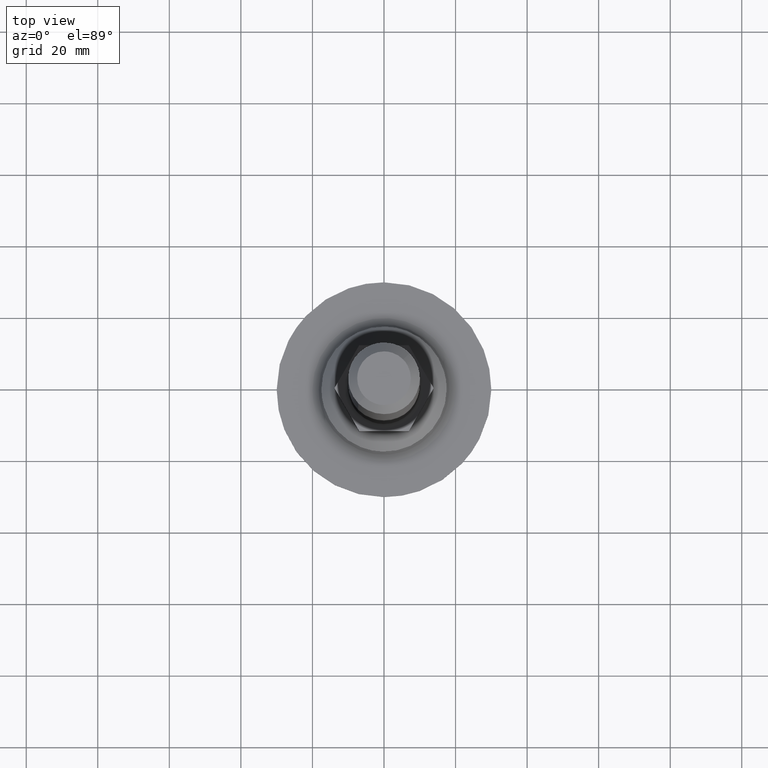
[diagram: clean part render]
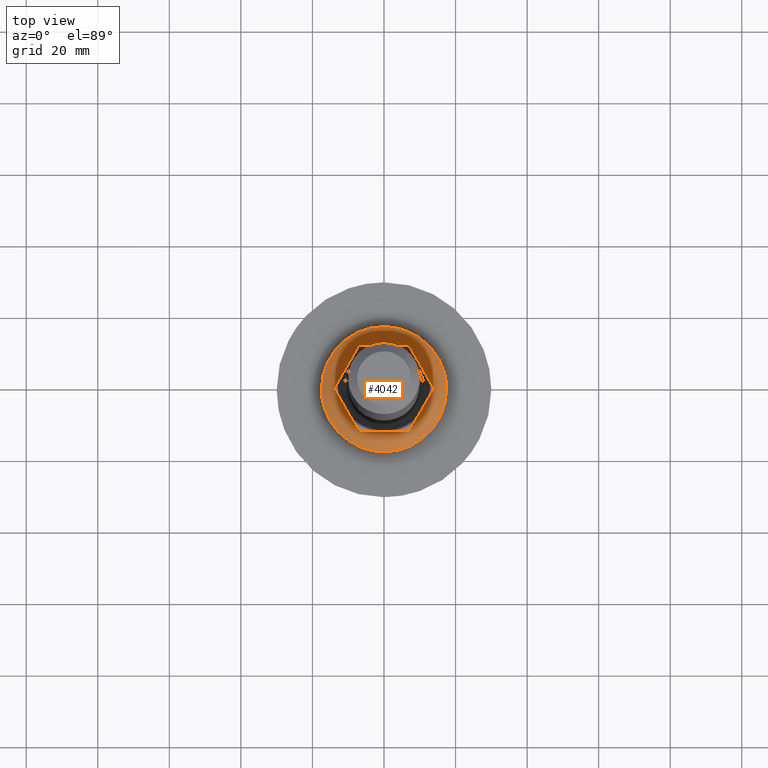
[diagram: same view with one face highlighted and labeled with its STEP entity id]
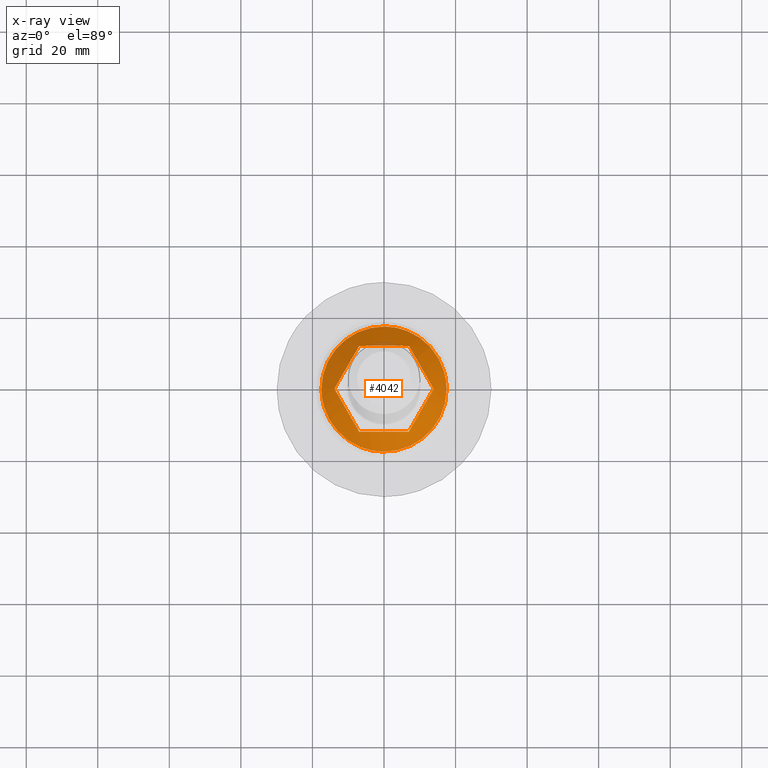
[diagram: x-ray of the same camera — body ghosted, the highlighted face saturated]
A machine part, top view. The second image highlights one B-rep face of the part: STEP entity #4042.
The next image is the same camera in x-ray: the body ghosted, the highlighted face saturated — about 1% of this face is hidden behind the body in this view.
In plain terms, the highlighted face is a freeform B-spline surface patch.
Its self-contained STEP definition (entity closure, byte-faithful):
#3642=CARTESIAN_POINT('',(6.442179672009505,16.271088503033521,10.499999999988480));
#3643=VERTEX_POINT('',#3642);
#3651=CARTESIAN_POINT('',(17.500000000000000,0.0,10.500000000000000));
#3652=VERTEX_POINT('',#3651);
#3653=CARTESIAN_POINT('',(6.442179672009505,16.271088503033521,10.499999999988480));
#3654=CARTESIAN_POINT('',(7.757566128484298,15.750708381420340,10.499999999989170));
#3655=CARTESIAN_POINT('',(9.731051910710002,14.676329716082670,10.499999999990330));
#3656=CARTESIAN_POINT('',(12.298104800389909,12.560114708280089,10.499999999992230));
#3657=CARTESIAN_POINT('',(14.383576656482139,10.173697140784810,10.499999999993930));
#3658=CARTESIAN_POINT('',(15.953895928574349,7.415750688522921,10.499999999995930));
#3659=CARTESIAN_POINT('',(17.173958403311879,3.971301255105628,10.499999999997980));
#3660=CARTESIAN_POINT('',(17.500504518683648,1.577819955629081,10.499999999999149));
#3661=CARTESIAN_POINT('',(17.500000000000000,0.0,10.500000000000000));
#3662=B_SPLINE_CURVE_WITH_KNOTS('',3,(#3653,#3654,#3655,#3656,#3657,#3658,#3659,#3660,#3661),.UNSPECIFIED.,.F.,.U.,(4,1,1,1,1,1,4),(0.000000086629896,4.243616405065399,6.691876775537116,9.956210998992564,13.710147552430200,16.158403780252950,20.891666863325302),.UNSPECIFIED.);
#3663=EDGE_CURVE('',#3643,#3652,#3662,.T.);
#3665=CARTESIAN_POINT('',(-6.442179672009507,-16.271088503033521,10.499999999988480));
#3666=VERTEX_POINT('',#3665);
#3667=CARTESIAN_POINT('',(17.500000000000000,0.0,10.500000000000000));
#3668=CARTESIAN_POINT('',(17.500094653143609,-1.020812217045716,10.499999999999810));
#3669=CARTESIAN_POINT('',(17.348087882014070,-2.751713039325113,10.499999999999270));
#3670=CARTESIAN_POINT('',(16.703859364383899,-5.432233924505061,10.499999999998570));
#3671=CARTESIAN_POINT('',(15.535124665052930,-8.323792483284477,10.499999999997479));
#3672=CARTESIAN_POINT('',(13.745616923930401,-10.998102868598551,10.499999999996239));
#3673=CARTESIAN_POINT('',(11.346060773356291,-13.442831316826020,10.499999999995110));
#3674=CARTESIAN_POINT('',(8.875326840143268,-15.205681626257670,10.499999999993770));
#3675=CARTESIAN_POINT('',(5.959763167166365,-16.541033129688671,10.499999999992591));
#3676=CARTESIAN_POINT('',(3.206600957488396,-17.279682903144749,10.499999999991360));
#3677=CARTESIAN_POINT('',(0.638416124254545,-17.543374711169889,10.499999999990550));
#3678=CARTESIAN_POINT('',(-2.605677279839930,-17.431249791171719,10.499999999989489));
#3679=CARTESIAN_POINT('',(-4.915494757814019,-16.876272315346871,10.499999999988690));
#3680=CARTESIAN_POINT('',(-6.442179672009507,-16.271088503033521,10.499999999988480));
#3681=B_SPLINE_CURVE_WITH_KNOTS('',3,(#3667,#3668,#3669,#3670,#3671,#3672,#3673,#3674,#3675,#3676,#3677,#3678,#3679,#3680),.UNSPECIFIED.,.F.,.U.,(4,1,1,1,1,1,1,1,1,1,1,4),(0.000000213082991,3.062425925654310,5.192825730115043,8.255290699709168,12.382977219230250,14.779637154846700,18.507753188290380,21.437110458232961,24.366409174082190,27.029435808678102,29.159855983438160,34.086362508629627),.UNSPECIFIED.);
#3682=EDGE_CURVE('',#3652,#3666,#3681,.T.);
#3728=CARTESIAN_POINT('',(-17.500000000000121,0.0,10.500000000000000));
#3729=VERTEX_POINT('',#3728);
#3730=CARTESIAN_POINT('',(-6.442179672009507,-16.271088503033521,10.499999999988480));
#3731=CARTESIAN_POINT('',(-7.605715231166741,-15.810631688361489,10.499999999989081));
#3732=CARTESIAN_POINT('',(-9.591052129042362,-14.765884507470840,10.499999999990260));
#3733=CARTESIAN_POINT('',(-12.446068297369820,-12.478901659747530,10.499999999992260));
#3734=CARTESIAN_POINT('',(-14.574538931791739,-9.900929829205943,10.499999999994371));
#3735=CARTESIAN_POINT('',(-16.114375375750480,-7.010908781626513,10.499999999996000));
#3736=CARTESIAN_POINT('',(-17.196695827729659,-3.862584935415956,10.499999999998320));
#3737=CARTESIAN_POINT('',(-17.500437184335539,-1.468989761522128,10.499999999998870));
#3738=CARTESIAN_POINT('',(-17.500000000000121,0.0,10.500000000000000));
#3739=B_SPLINE_CURVE_WITH_KNOTS('',3,(#3730,#3731,#3732,#3733,#3734,#3735,#3736,#3737,#3738),.UNSPECIFIED.,.F.,.U.,(4,1,1,1,1,1,4),(0.000000086634767,3.753971927273643,6.691876775541244,10.935457932217099,13.710147552432391,16.484831316280481,20.891666863325309),.UNSPECIFIED.);
#3740=EDGE_CURVE('',#3666,#3729,#3739,.T.);
#3742=CARTESIAN_POINT('',(-17.500000000000121,0.0,10.500000000000000));
#3743=CARTESIAN_POINT('',(-17.500042964483139,0.887642282918073,10.499999999999780));
#3744=CARTESIAN_POINT('',(-17.351146816111012,2.840500630084116,10.499999999999361));
#3745=CARTESIAN_POINT('',(-16.599186912927880,5.868316159237223,10.499999999998330));
#3746=CARTESIAN_POINT('',(-15.230943744690279,8.822772001867691,10.499999999997341));
#3747=CARTESIAN_POINT('',(-13.340897106922069,11.469661564810330,10.499999999996041));
#3748=CARTESIAN_POINT('',(-11.360767620096089,13.396950209206070,10.499999999995010));
#3749=CARTESIAN_POINT('',(-9.159271882298334,14.980344983888230,10.499999999993880));
#3750=CARTESIAN_POINT('',(-6.792430026133891,16.220976245149210,10.499999999992889));
#3751=CARTESIAN_POINT('',(-3.611791273480067,17.245575068668579,10.499999999991580));
#3752=CARTESIAN_POINT('',(-0.548029239287436,17.583766471583981,10.499999999990431));
#3753=CARTESIAN_POINT('',(2.957387370558239,17.355373633145280,10.499999999989580));
#3754=CARTESIAN_POINT('',(5.080494477419980,16.810650015304901,10.499999999988191));
#3755=CARTESIAN_POINT('',(6.442179672009505,16.271088503033521,10.499999999988480));
#3756=B_SPLINE_CURVE_WITH_KNOTS('',3,(#3742,#3743,#3744,#3745,#3746,#3747,#3748,#3749,#3750,#3751,#3752,#3753,#3754,#3755),.UNSPECIFIED.,.F.,.U.,(4,1,1,1,1,1,1,1,1,1,1,4),(0.000000213083752,2.662934249848437,5.858592398553569,9.320499051299564,12.382977219229730,15.578609066002260,17.575702082881651,20.505054871079508,23.567515134423751,27.562028716056400,29.692433392254092,34.086362508629684),.UNSPECIFIED.);
#3757=EDGE_CURVE('',#3729,#3643,#3756,.T.);
#3937=CARTESIAN_POINT('',(-14.711983892946440,-14.710832779693819,2.671202328056626));
#3938=CARTESIAN_POINT('',(-9.205015053746239,-18.408589647136122,9.053379894773039));
#3939=CARTESIAN_POINT('',(9.205015053750813,-18.408589647136122,9.053379894769050));
#3940=CARTESIAN_POINT('',(14.711983892948240,-14.710832779693819,2.671202328050254));
#3941=CARTESIAN_POINT('',(-18.409306007858401,-9.203932802079587,9.052130226118734));
#3942=CARTESIAN_POINT('',(-12.295050359184890,-12.294088354646970,19.719095173921239));
#3943=CARTESIAN_POINT('',(12.295050359194081,-12.294088354646970,19.719095173915910));
#3944=CARTESIAN_POINT('',(18.409306007862973,-9.203932802079587,9.052130226110753));
#3945=CARTESIAN_POINT('',(-18.409306007858401,9.203938334502714,9.052130226124858));
#3946=CARTESIAN_POINT('',(-12.295050359184890,12.294095744537421,19.719095173929428));
#3947=CARTESIAN_POINT('',(12.295050359194081,12.294095744537421,19.719095173924099));
#3948=CARTESIAN_POINT('',(18.409306007862973,9.203938334502714,9.052130226116883));
#3949=CARTESIAN_POINT('',(-14.711980340777327,14.710838070393228,2.671196197647079));
#3950=CARTESIAN_POINT('',(-9.205012272559642,18.408595150483301,9.053370295107156));
#3951=CARTESIAN_POINT('',(9.205012272564218,18.408595150483301,9.053370295103166));
#3952=CARTESIAN_POINT('',(14.711980340779126,14.710838070393235,2.671196197640705));
#3960=(BOUNDED_SURFACE()B_SPLINE_SURFACE(2,2,((#3937,#3941,#3945,#3949),(#3938,#3942,#3946,#3950),(#3939,#3943,#3947,#3951),(#3940,#3944,#3948,#3952)),.UNSPECIFIED.,.F.,.F.,.U.)B_SPLINE_SURFACE_WITH_KNOTS((3,1,3),(3,1,3),(0.0,21.055722135984219,42.111444271968423),(0.0,21.054074668109131,42.108161991699347),.UNSPECIFIED.)GEOMETRIC_REPRESENTATION_ITEM()RATIONAL_B_SPLINE_SURFACE(((1.671433363257488,1.335742950216543,1.335742950216543,1.671433766820695),(1.335690413040945,1.0,1.0,1.335690816604152),(1.335690413040945,1.0,1.0,1.335690816604152),(1.671433363257488,1.335742950216543,1.335742950216543,1.671433766820695)))REPRESENTATION_ITEM('')SURFACE());
#3961=ORIENTED_EDGE('',*,*,#3740,.F.);
#3962=ORIENTED_EDGE('',*,*,#3682,.F.);
#3963=ORIENTED_EDGE('',*,*,#3663,.F.);
#3964=ORIENTED_EDGE('',*,*,#3757,.F.);
#3965=EDGE_LOOP('',(#3961,#3962,#3963,#3964));
#3966=FACE_OUTER_BOUND('',#3965,.T.);
#3967=CARTESIAN_POINT('',(-6.928203230275360,12.0,14.570158679988200));
#3968=VERTEX_POINT('',#3967);
#3969=CARTESIAN_POINT('',(6.928203230275470,12.0,14.570158679988140));
#3970=VERTEX_POINT('',#3969);
#3971=CARTESIAN_POINT('',(-6.928203230275360,12.0,14.570158679988200));
#3972=CARTESIAN_POINT('',(-5.838039152776561,12.000000000000011,15.040317671182590));
#3973=CARTESIAN_POINT('',(-3.703872107225098,12.0,15.712590989558899));
#3974=CARTESIAN_POINT('',(-0.151467276359495,12.0,16.121279248392849));
#3975=CARTESIAN_POINT('',(3.419330445963153,12.000000000000020,15.802451779000140));
#3976=CARTESIAN_POINT('',(5.838036738529191,11.999999999999980,15.040277585058149));
#3977=CARTESIAN_POINT('',(6.928203230275470,12.0,14.570158679988140));
#3978=B_SPLINE_CURVE_WITH_KNOTS('',3,(#3971,#3972,#3973,#3974,#3975,#3976,#3977),.UNSPECIFIED.,.F.,.U.,(4,1,1,1,4),(0.000000013733304,3.561667563204297,6.678125447546107,10.684998389700841,14.246664480829310),.UNSPECIFIED.);
#3979=EDGE_CURVE('',#3968,#3970,#3978,.T.);
#3980=ORIENTED_EDGE('',*,*,#3979,.T.);
#3981=CARTESIAN_POINT('',(13.856406460551060,-8.673617E-016,14.570158679988101));
#3982=VERTEX_POINT('',#3981);
#3983=CARTESIAN_POINT('',(6.928203230275470,12.0,14.570158679988140));
#3984=CARTESIAN_POINT('',(7.473279444649748,11.055900302706419,15.040346180611969));
#3985=CARTESIAN_POINT('',(8.469238746911524,9.330848188918269,15.667743297010061));
#3986=CARTESIAN_POINT('',(10.019370329226000,6.645941529932339,16.064237097556202));
#3987=CARTESIAN_POINT('',(11.805987651941120,3.551429553307234,15.928074509523560));
#3988=CARTESIAN_POINT('',(13.106967170667859,1.298066927266009,15.216980799922061));
#3989=CARTESIAN_POINT('',(13.856406460551060,-8.673617E-016,14.570158679988101));
#3990=B_SPLINE_CURVE_WITH_KNOTS('',3,(#3983,#3984,#3985,#3986,#3987,#3988,#3989),.UNSPECIFIED.,.F.,.U.,(4,1,1,1,4),(0.000000013733088,3.561667563204136,6.232918709359614,9.349361233647588,14.246664480829560),.UNSPECIFIED.);
#3991=EDGE_CURVE('',#3970,#3982,#3990,.T.);
#3992=ORIENTED_EDGE('',*,*,#3991,.T.);
#3993=CARTESIAN_POINT('',(6.928203230275470,-12.0,14.570158679988181));
#3994=VERTEX_POINT('',#3993);
#3995=CARTESIAN_POINT('',(13.856406460551060,-8.673617E-016,14.570158679988101));
#3996=CARTESIAN_POINT('',(13.106968874772440,-1.298063975670414,15.216984909158370));
#3997=CARTESIAN_POINT('',(11.805988803005970,-3.551427559604250,15.928063655402230));
#3998=CARTESIAN_POINT('',(10.093817720156601,-6.516994866349791,16.058554197888540));
#3999=CARTESIAN_POINT('',(8.542658099331197,-9.203682140268457,15.701828007883339));
#4000=CARTESIAN_POINT('',(7.541405705766399,-10.937902157122780,15.099220077972170));
#4001=CARTESIAN_POINT('',(6.928203230275470,-12.0,14.570158679988181));
#4002=B_SPLINE_CURVE_WITH_KNOTS('',3,(#3995,#3996,#3997,#3998,#3999,#4000,#4001),.UNSPECIFIED.,.F.,.U.,(4,1,1,1,4),(0.000000013731942,4.897296296615570,8.013737511120368,10.239785256543261,14.246664480829541),.UNSPECIFIED.);
#4003=EDGE_CURVE('',#3982,#3994,#4002,.T.);
#4004=ORIENTED_EDGE('',*,*,#4003,.T.);
#4005=CARTESIAN_POINT('',(-6.928203230275470,-12.0,14.570158679988181));
#4006=VERTEX_POINT('',#4005);
#4007=CARTESIAN_POINT('',(6.928203230275470,-12.0,14.570158679988181));
#4008=CARTESIAN_POINT('',(5.974303596691006,-12.0,14.981512796227859));
#4009=CARTESIAN_POINT('',(3.992965484881412,-12.000000000000011,15.633542599529690));
#4010=CARTESIAN_POINT('',(0.599677975877558,-11.999999999999931,16.111759988582438));
#4011=CARTESIAN_POINT('',(-3.127180324355838,-12.000000000000091,15.874322852953750));
#4012=CARTESIAN_POINT('',(-5.701787722480057,-11.999999999999920,15.099133173273010));
#4013=CARTESIAN_POINT('',(-6.928203230275470,-12.0,14.570158679988181));
#4014=B_SPLINE_CURVE_WITH_KNOTS('',3,(#4007,#4008,#4009,#4010,#4011,#4012,#4013),.UNSPECIFIED.,.F.,.U.,(4,1,1,1,4),(0.000000013732697,3.116456526513133,6.232918709359415,10.239785256543220,14.246664480829430),.UNSPECIFIED.);
#4015=EDGE_CURVE('',#3994,#4006,#4014,.T.);
#4016=ORIENTED_EDGE('',*,*,#4015,.T.);
#4017=CARTESIAN_POINT('',(-13.856406460550939,0.0,14.570158679988200));
#4018=VERTEX_POINT('',#4017);
#4019=CARTESIAN_POINT('',(-6.928203230275470,-12.0,14.570158679988181));
#4020=CARTESIAN_POINT('',(-7.405152832399264,-11.173899056471811,14.981511316500560));
#4021=CARTESIAN_POINT('',(-8.395823009854983,-9.458007975575233,15.633590927088459));
#4022=CARTESIAN_POINT('',(-9.797390713426903,-7.030421502741014,16.028382571489029));
#4023=CARTESIAN_POINT('',(-11.209963400895271,-4.583773838661739,15.992470956089351));
#4024=CARTESIAN_POINT('',(-12.532580211115500,-2.292934324415321,15.550995091222079));
#4025=CARTESIAN_POINT('',(-13.447585621100460,-0.708098465121265,14.922701007878169));
#4026=CARTESIAN_POINT('',(-13.856406460550939,0.0,14.570158679988200));
#4027=B_SPLINE_CURVE_WITH_KNOTS('',3,(#4019,#4020,#4021,#4022,#4023,#4024,#4025,#4026),.UNSPECIFIED.,.F.,.U.,(4,1,1,1,1,4),(0.000000013733096,3.116456526513469,6.232918709359644,8.458943356082546,11.575424085843141,14.246664480829480),.UNSPECIFIED.);
#4028=EDGE_CURVE('',#4006,#4018,#4027,.T.);
#4029=ORIENTED_EDGE('',*,*,#4028,.T.);
#4030=CARTESIAN_POINT('',(-13.856406460550939,0.0,14.570158679988200));
#4031=CARTESIAN_POINT('',(-13.175084171984970,1.180084820125377,15.158086274869770));
#4032=CARTESIAN_POINT('',(-12.024733643441751,3.172550382075863,15.818521484070081));
#4033=CARTESIAN_POINT('',(-10.318101666999031,6.128523675096382,16.079459752917568));
#4034=CARTESIAN_POINT('',(-8.685691273594774,8.955941415275740,15.788065181462640));
#4035=CARTESIAN_POINT('',(-7.541405415130797,10.937902660518461,15.099172853342671));
#4036=CARTESIAN_POINT('',(-6.928203230275360,12.0,14.570158679988200));
#4037=B_SPLINE_CURVE_WITH_KNOTS('',3,(#4030,#4031,#4032,#4033,#4034,#4035,#4036),.UNSPECIFIED.,.F.,.U.,(4,1,1,1,4),(0.000000013731626,4.452087495265321,7.123332247280633,10.239785256543080,14.246664480829550),.UNSPECIFIED.);
#4038=EDGE_CURVE('',#4018,#3968,#4037,.T.);
#4039=ORIENTED_EDGE('',*,*,#4038,.T.);
#4040=EDGE_LOOP('',(#3980,#3992,#4004,#4016,#4029,#4039));
#4041=FACE_BOUND('',#4040,.T.);
#4042=ADVANCED_FACE('',(#3966,#4041),#3960,.T.);